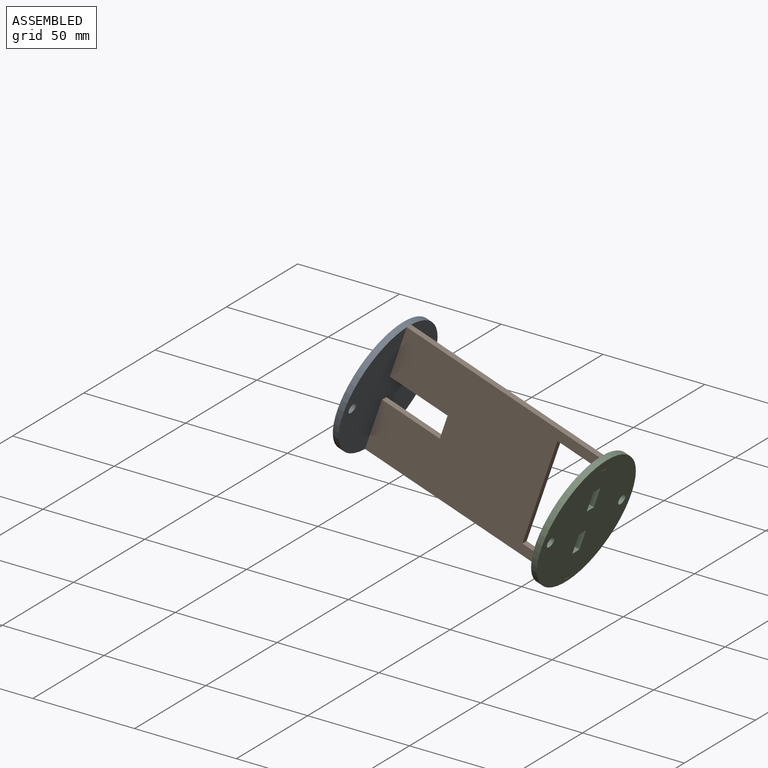
[diagram: assembled view]
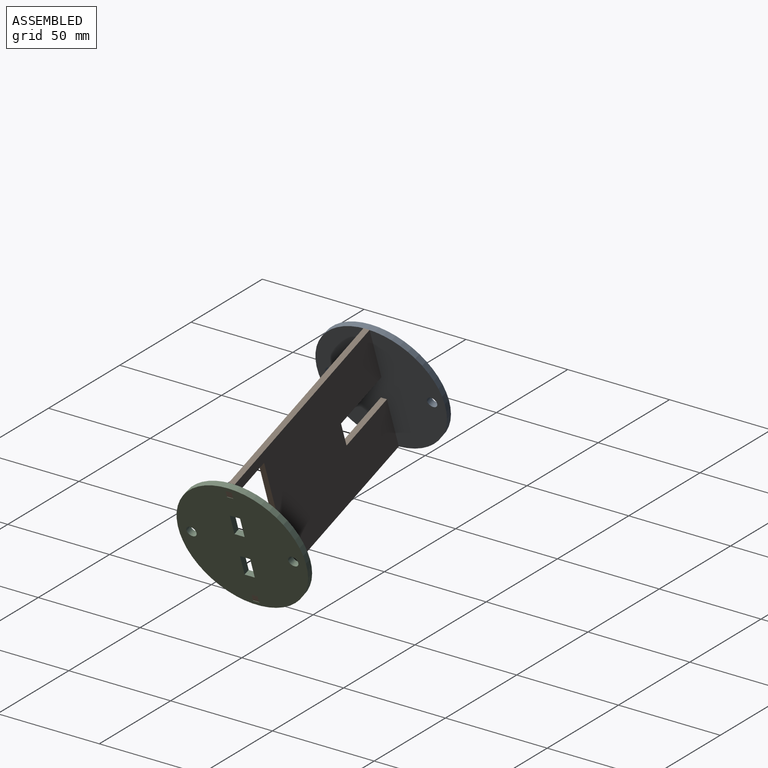
[diagram: assembled view, second angle]
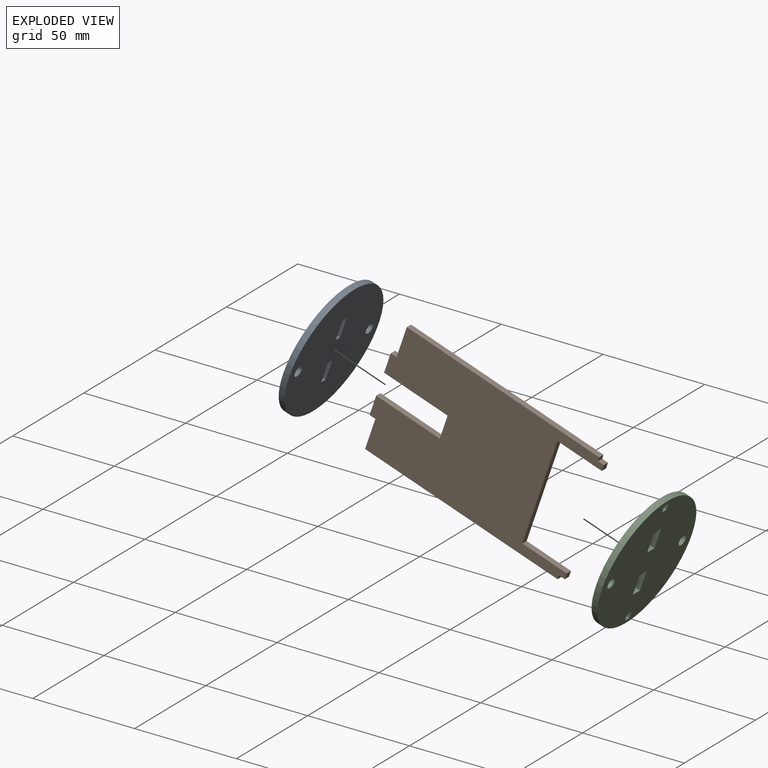
[diagram: exploded view]
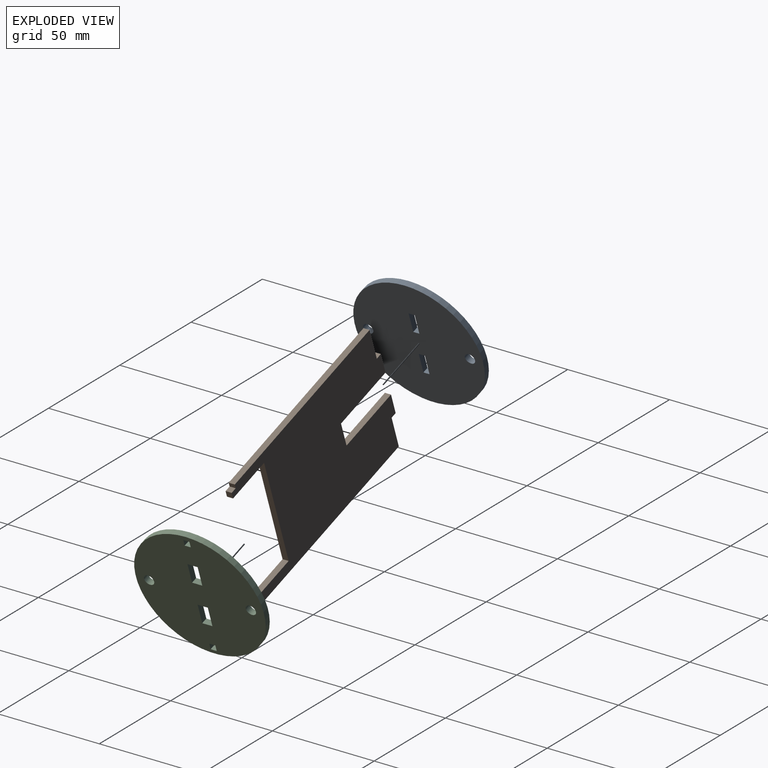
[diagram: exploded view, second angle]
ASSEMBLY  parts=3 mates=4
PART A: 13 faces, bbox 63x63x3 mm
  f0: plane 63x63mm, normal (0,0,1), area 3018mm2, adj f2,f3,f4,f5,f6,f7,f8,f9
  f1: plane 63x63mm, normal (0,0,-1), area 3018mm2, adj f2,f3,f4,f5,f6,f7,f8,f9
  f2: cylinder r=31.5mm len=63mm, axis (0,0,-1), area 593.8mm2, adj f0,f1
  f3: cylinder r=2.5mm len=5mm, axis (0,0,1), area 47.1mm2, adj f0,f1
  f4: cylinder r=2.5mm len=5mm, axis (0,0,1), area 47.1mm2, adj f0,f1
  f5: plane 10x3mm, normal (0,-1,0), area 30mm2, adj f0,f1,f6,f8
  f6: plane 3x3mm, normal (1,0,0), area 9mm2, adj f0,f1,f5,f7
  f7: plane 10x3mm, normal (0,1,0), area 30mm2, adj f0,f1,f6,f8
  f8: plane 3x3mm, normal (-1,0,0), area 9mm2, adj f0,f1,f5,f7
  f9: plane 10x3mm, normal (0,-1,0), area 30mm2, adj f0,f1,f10,f12
  f10: plane 3x3mm, normal (1,0,0), area 9mm2, adj f0,f1,f9,f11
  f11: plane 10x3mm, normal (0,1,0), area 30mm2, adj f0,f1,f10,f12
  f12: plane 3x3mm, normal (-1,0,0), area 9mm2, adj f0,f1,f9,f11
PART B: 22 faces, bbox 106x63x3 mm
  f0: plane 3x2mm, normal (1,0,0), area 6mm2, adj f4,f6,f7,f20
  f1: plane 3x2mm, normal (1,0,0), area 6mm2, adj f5,f6,f7,f18
  f2: plane 15.55x3mm, normal (-1,0,0), area 46.7mm2, adj f5,f6,f7,f13
  f3: plane 15.55x3mm, normal (-1,0,0), area 46.6mm2, adj f4,f6,f7,f11
  f4: plane 100x3mm, normal (0,1,0), area 300mm2, adj f0,f3,f6,f7
  f5: plane 100x3mm, normal (0,-1,0), area 300mm2, adj f1,f2,f6,f7
  f6: plane 106x63mm, normal (0,0,1), area 4961mm2, adj f0,f1,f2,f3,f4,f5,f8,f9
  f7: plane 106x63mm, normal (0,0,-1), area 4961mm2, adj f0,f1,f2,f3,f4,f5,f8,f9
  f8: plane 33x3mm, normal (0,1,0), area 99mm2, adj f6,f7,f9,f14
  f9: plane 11.9x3mm, normal (-1,0,0), area 35.7mm2, adj f6,f7,f8,f10
  f10: plane 33x3mm, normal (0,-1,0), area 99mm2, adj f6,f7,f9,f12
  f11: plane 3x3mm, normal (0,1,0), area 9mm2, adj f3,f6,f7,f12
  f12: plane 10x3mm, normal (-1,0,0), area 30mm2, adj f6,f7,f10,f11
  f13: plane 3x3mm, normal (0,-1,0), area 9mm2, adj f2,f6,f7,f14
  f14: plane 10x3mm, normal (-1,0,0), area 30mm2, adj f6,f7,f8,f13
  f15: plane 53x3mm, normal (1,0,0), area 159mm2, adj f6,f7,f16,f17
  f16: plane 23x3mm, normal (0,1,0), area 69mm2, adj f6,f7,f15,f19
  f17: plane 23x3mm, normal (0,-1,0), area 69mm2, adj f6,f7,f15,f21
  f18: plane 3x3mm, normal (0,-1,0), area 9mm2, adj f1,f6,f7,f19
  f19: plane 3x3mm, normal (1,0,0), area 9mm2, adj f6,f7,f16,f18
  f20: plane 3x3mm, normal (0,1,0), area 9mm2, adj f0,f6,f7,f21
  f21: plane 3x3mm, normal (1,0,0), area 9mm2, adj f6,f7,f17,f20
PART C: 21 faces, bbox 63x63x3 mm
  f0: plane 63x63mm, normal (0,0,1), area 2960mm2, adj f2,f3,f4,f5,f6,f7,f8,f9
  f1: plane 63x63mm, normal (0,0,-1), area 2960mm2, adj f2,f3,f4,f5,f6,f7,f8,f9
  f2: cylinder r=31.5mm len=63mm, axis (0,0,-1), area 593.8mm2, adj f0,f1
  f3: cylinder r=2.5mm len=5mm, axis (0,0,1), area 47.1mm2, adj f0,f1
  f4: cylinder r=2.5mm len=5mm, axis (0,0,1), area 47.1mm2, adj f0,f1
  f5: plane 10x3mm, normal (0,-1,0), area 30mm2, adj f0,f1,f6,f8
  f6: plane 5x3mm, normal (1,0,0), area 15mm2, adj f0,f1,f5,f7
  f7: plane 10x3mm, normal (0,1,0), area 30mm2, adj f0,f1,f6,f8
  f8: plane 5x3mm, normal (-1,0,0), area 15mm2, adj f0,f1,f5,f7
  f9: plane 10x3mm, normal (0,-1,0), area 30mm2, adj f0,f1,f10,f12
  f10: plane 5x3mm, normal (1,0,0), area 15mm2, adj f0,f1,f9,f11
  f11: plane 10x3mm, normal (0,1,0), area 30mm2, adj f0,f1,f10,f12
  f12: plane 5x3mm, normal (-1,0,0), area 15mm2, adj f0,f1,f9,f11
  f13: plane 3x3mm, normal (1,0,0), area 9mm2, adj f0,f1,f14,f16
  f14: plane 3x3mm, normal (0,1,0), area 9mm2, adj f0,f1,f13,f15
  f15: plane 3x3mm, normal (-1,0,0), area 9mm2, adj f0,f1,f14,f16
  f16: plane 3x3mm, normal (0,-1,0), area 9mm2, adj f0,f1,f13,f15
  f17: plane 3x3mm, normal (-1,0,0), area 9mm2, adj f0,f1,f18,f20
  f18: plane 3x3mm, normal (0,1,0), area 9mm2, adj f0,f1,f17,f19
  f19: plane 3x3mm, normal (1,0,0), area 9mm2, adj f0,f1,f18,f20
  f20: plane 3x3mm, normal (0,-1,0), area 9mm2, adj f0,f1,f17,f19
PLACE A rot(axis=(0,-1,0),71deg) t=(-9.68,-8.35,-51.72)mm
PLACE B rot(axis=(0.97,0.16,-0.16),91.6deg) t=(95.13,-6.85,-54.45)mm
PLACE C rot(axis=(0,-1,0),71deg) t=(87.72,-8.35,-85.22)mm
MATE slider A.f2 <-> B.f9  axis (0.95,0,-0.33) through (-9.68,-8.35,-51.72)mm
MATE slider B.f15 <-> C.f2  axis (0.95,0,-0.33) through (65.97,-8.35,-77.74)mm
MATE planar A.f2 <-> B.f14  axis (-0.95,0,0.33) through (-12.51,-8.35,-50.74)mm
MATE planar B.f21 <-> C.f2  axis (0.95,0,-0.33) through (96.83,-8.35,-58.74)mm
